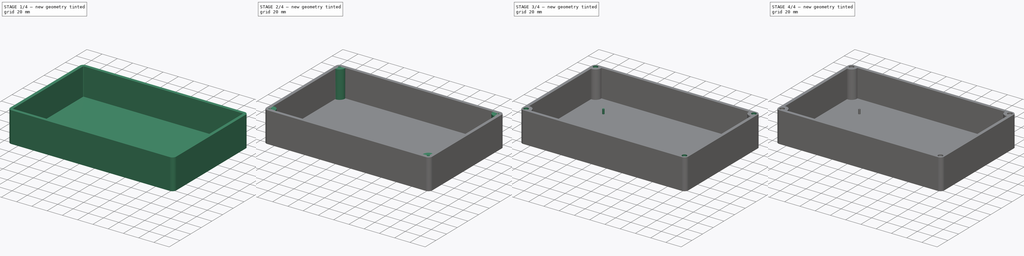
[diagram: build sequence overview — one tinted view per stage of 4, left to right]
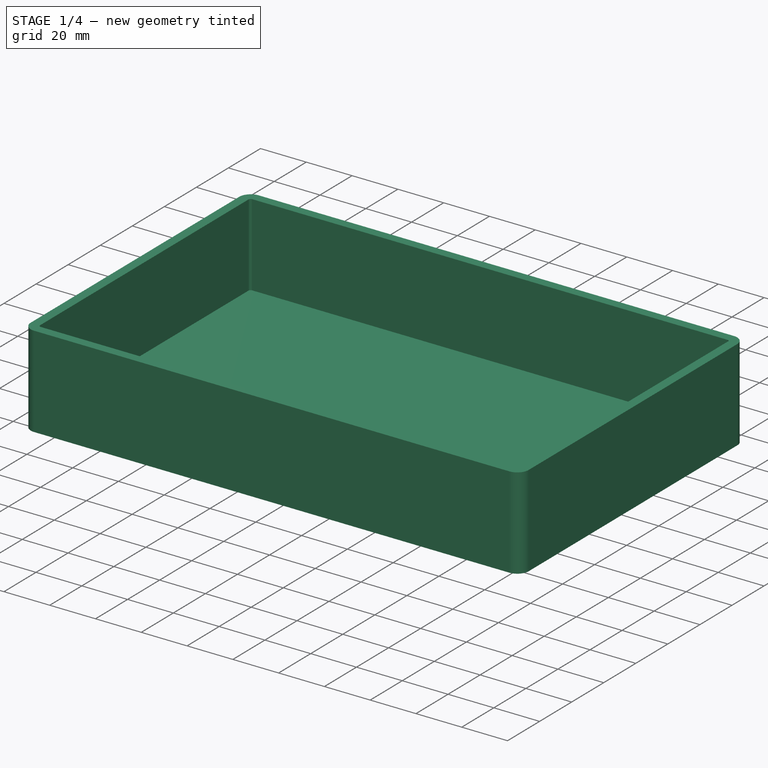
[diagram: stage 1 of 4 — iso view after this stage's code; geometry added in this stage tinted green]
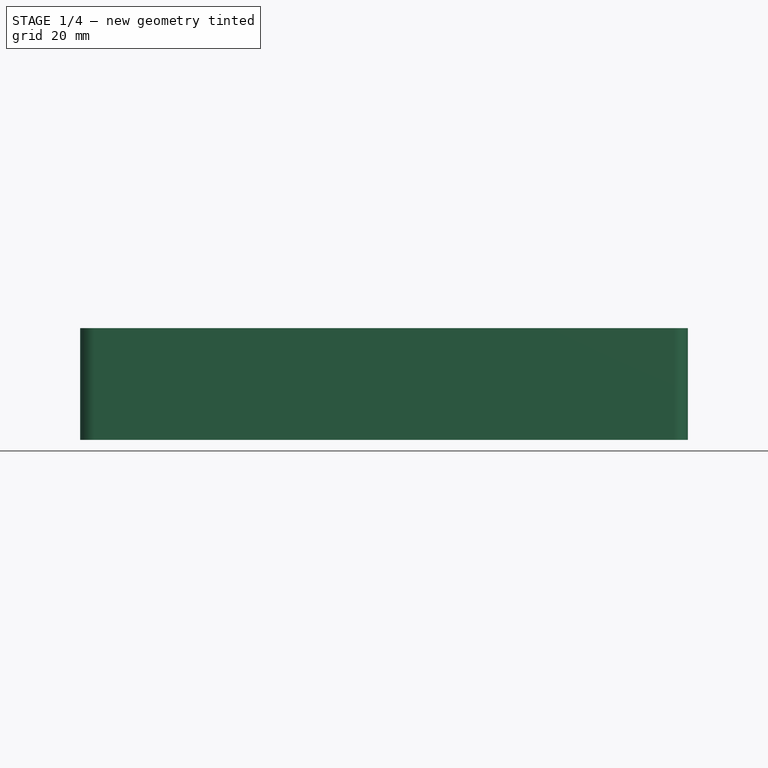
[diagram: stage 1 of 4 — front view after this stage's code; geometry added in this stage tinted green]
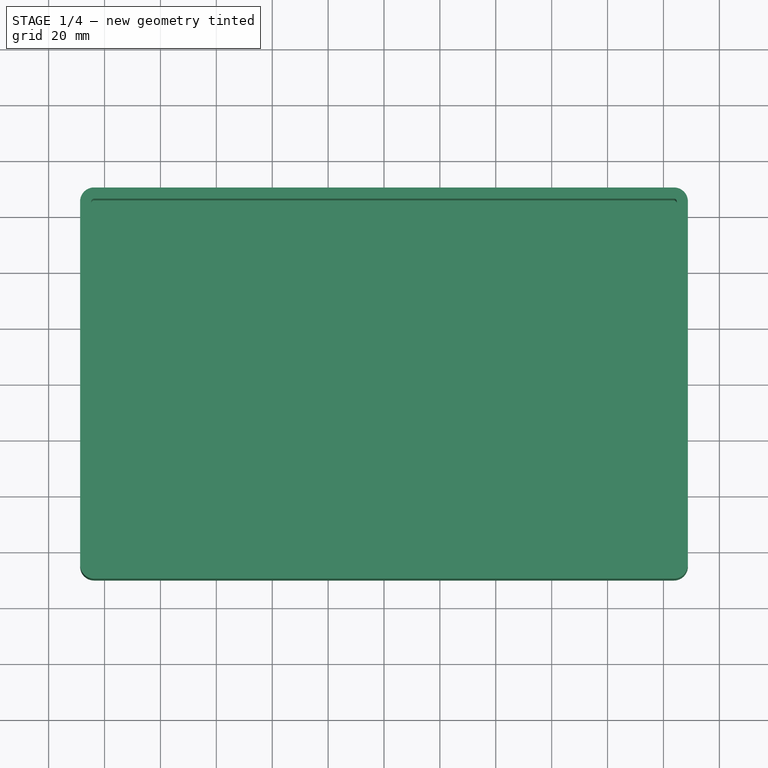
[diagram: stage 1 of 4 — top view after this stage's code; geometry added in this stage tinted green]
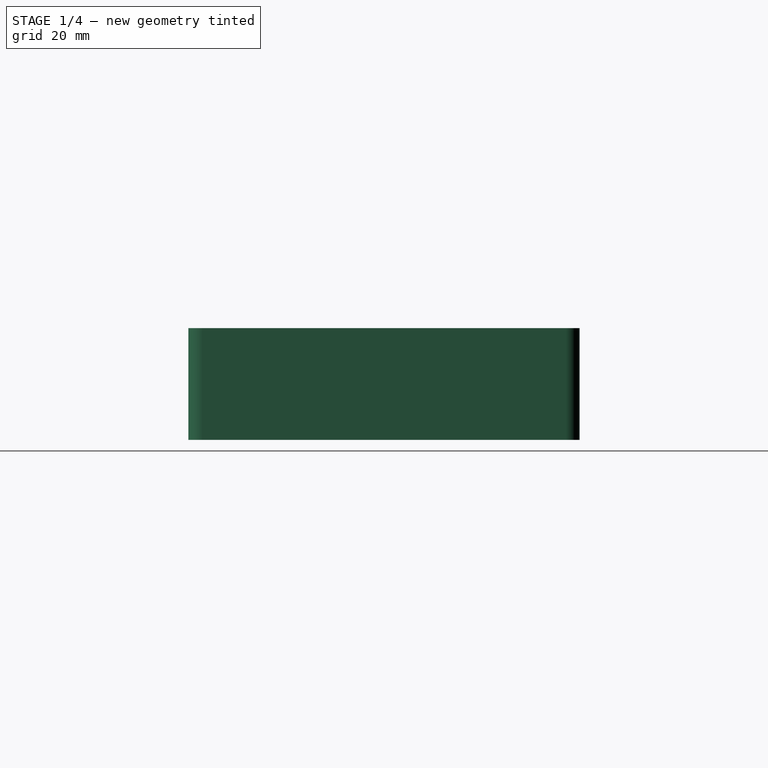
[diagram: stage 1 of 4 — right view after this stage's code; geometry added in this stage tinted green]
FCSTD DOCUMENT  (FreeCAD 1.0R39109 (Git))
Label: 2
License: All rights reserved
LicenseURL: https://en.wikipedia.org/wiki/All_rights_reserved
objects: PartDesign::Mirrored×6, Sketcher::SketchObject×3, PartDesign::Pad×3, PartDesign::MultiTransform×3, PartDesign::Hole×3, PartDesign::Thickness×1, PartDesign::Body×1
note: 46 computed .brp shape members not serialized (recipe doc carries the construction recipe); baked Part::Feature solids carry a one-line shape summary decoded from their .brp

FEATURE [Sketcher::SketchObject] Sketch
  ArcFitTolerance = 1e-06
  AttachmentSupport = -> [XY_Plane]
  FullyConstrained = true
  MakeInternals = false
  MapMode = 5
  sketch-geometry (13):
    g0: LineSegment StartX=-103.75 StartY=-70 StartZ=0 EndX=103.75 EndY=-70 EndZ=0
    g1: LineSegment StartX=108.75 StartY=-65 StartZ=0 EndX=108.75 EndY=65 EndZ=0
    g2: LineSegment StartX=103.75 StartY=70 StartZ=0 EndX=-103.75 EndY=70 EndZ=0
    g3: LineSegment StartX=-108.75 StartY=65 StartZ=0 EndX=-108.75 EndY=-65 EndZ=0
    g4: GeomPoint [constr] X=0 Y=0 Z=0
    g5: ArcOfCircle CenterX=-103.75 CenterY=65 CenterZ=0 NormalX=0 NormalY=0 NormalZ=1 AngleXU=0 Radius=5 StartAngle=1.5708 EndAngle=3.14159
    g6: GeomPoint [constr] X=-108.75 Y=70 Z=0
    g7: ArcOfCircle CenterX=103.75 CenterY=65 CenterZ=0 NormalX=0 NormalY=0 NormalZ=1 AngleXU=0 Radius=5 StartAngle=1e-16 EndAngle=1.5708
    g8: GeomPoint [constr] X=108.75 Y=70 Z=0
    g9: ArcOfCircle CenterX=103.75 CenterY=-65 CenterZ=0 NormalX=0 NormalY=0 NormalZ=1 AngleXU=0 Radius=5 StartAngle=4.71239 EndAngle=6.28319
    g10: GeomPoint [constr] X=108.75 Y=-70 Z=0
    g11: ArcOfCircle CenterX=-103.75 CenterY=-65 CenterZ=0 NormalX=0 NormalY=0 NormalZ=1 AngleXU=0 Radius=5 StartAngle=3.14159 EndAngle=4.71239
    g12: GeomPoint [constr] X=-108.75 Y=-70 Z=0
  constraints (28):
    c: Horizontal(g0)
    c: Horizontal(g2)
    c: Vertical(g1)
    c: Vertical(g3)
    c: Symmetric(g8,g12,g4)
    c: Distance(g10,g12) = 217.5
    c: Distance(g12,g6) = 140
    c: Coincident(g4,g-1)
    c: PointOnObject(g6,g3)
    c: PointOnObject(g6,g2)
    c: Tangent(g3,g5) = -1.5708
    c: Tangent(g2,g5) = -1.5708
    c: PointOnObject(g8,g2)
    c: PointOnObject(g8,g1)
    c: Tangent(g2,g7) = -1.5708
    c: Tangent(g1,g7) = -1.5708
    c: PointOnObject(g10,g1)
    c: PointOnObject(g10,g0)
    c: Tangent(g1,g9) = -1.5708
    c: Tangent(g0,g9) = -1.5708
    c: PointOnObject(g12,g0)
    c: PointOnObject(g12,g3)
    c: Tangent(g0,g11) = -1.5708
    c: Tangent(g3,g11) = -1.5708
    c: Radius(g11) = 5
    c: Radius(g5) = 5
    c: Radius(g7) = 5
    c: Radius(g9) = 5
FEATURE [PartDesign::Pad] Pad
  Direction = (0,0,1)
  Length = 40
  Length2 = 10
  Profile = -> Sketch
  ReferenceAxis = -> Sketch [N_Axis]
  Refine = true
  Suppressed = false
  Type = 0
FEATURE [PartDesign::Thickness] Thickness
  Base = -> Pad [Face10]
  BaseFeature = -> Pad
  Intersection = false
  Join = 0
  Mode = 0
  Refine = true
  Reversed = true
  SupportTransform = false
  Suppressed = false
  Value = 4
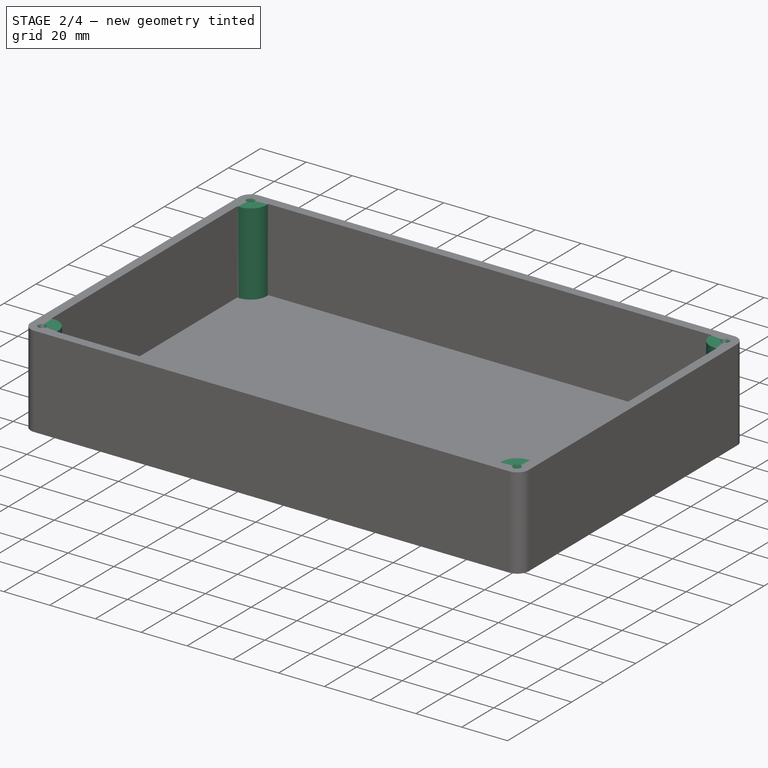
[diagram: stage 2 of 4 — iso view after this stage's code; geometry added in this stage tinted green]
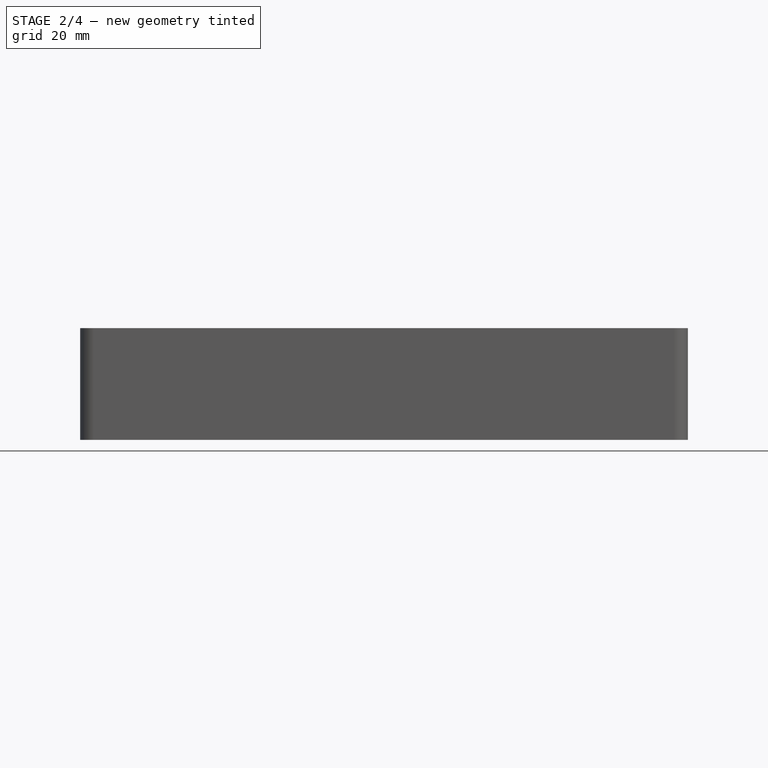
[diagram: stage 2 of 4 — front view after this stage's code; geometry added in this stage tinted green]
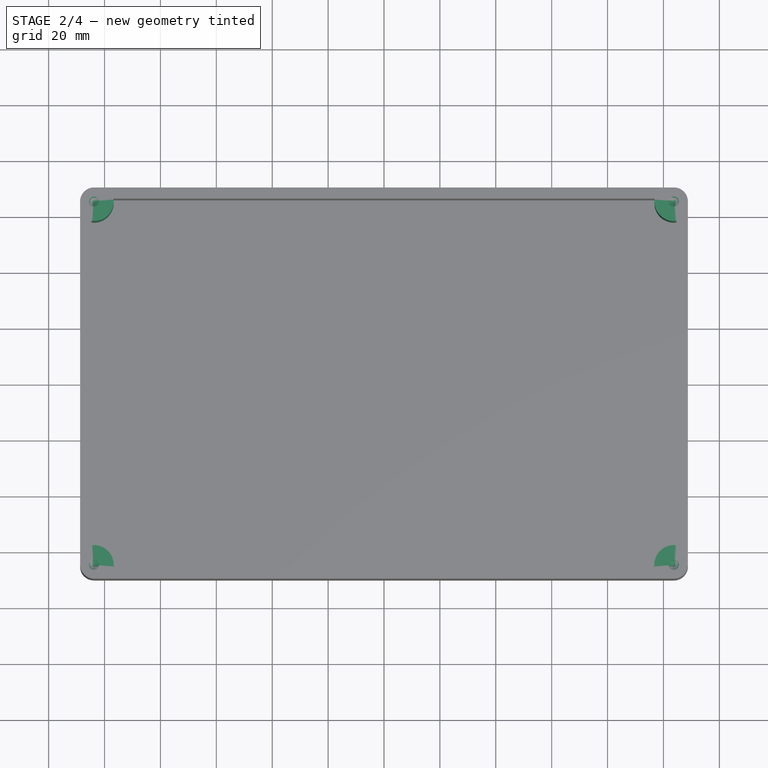
[diagram: stage 2 of 4 — top view after this stage's code; geometry added in this stage tinted green]
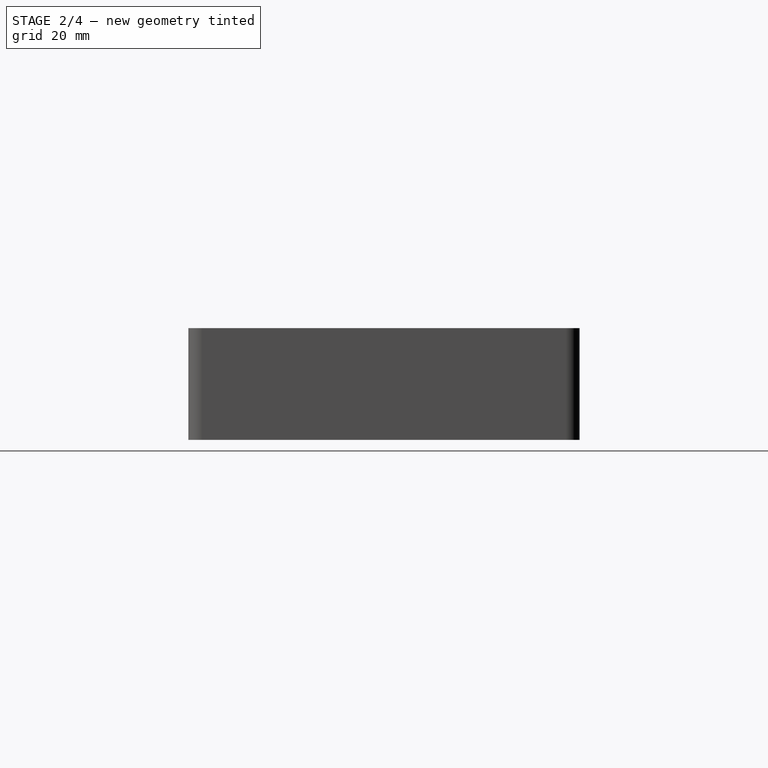
[diagram: stage 2 of 4 — right view after this stage's code; geometry added in this stage tinted green]
FEATURE [Sketcher::SketchObject] Sketch001
  ArcFitTolerance = 1e-06
  AttachmentSupport = -> [Thickness]
  ExternalGeometry = -> [Thickness]
  FullyConstrained = true
  MakeInternals = false
  MapMode = 5
  Placement = pos=(0,0,40) rot=(0,0,1;0rad)
  sketch-geometry (4):
    g0: ArcOfCircle CenterX=103.75 CenterY=-65 CenterZ=0 NormalX=0 NormalY=0 NormalZ=1 AngleXU=0 Radius=7 StartAngle=1.42745 EndAngle=3.28494
    g1: ArcOfCircle CenterX=103.75 CenterY=-65 CenterZ=0 NormalX=0 NormalY=0 NormalZ=1 AngleXU=0 Radius=1 StartAngle=4.71239 EndAngle=6.28319
    g2: LineSegment StartX=103.75 StartY=-66 StartZ=0 EndX=96.8218 EndY=-66 EndZ=0
    g3: LineSegment StartX=104.75 StartY=-65 StartZ=0 EndX=104.75 EndY=-58.0718 EndZ=0
  constraints (11):
    c: Diameter(g0) = 14
    c: Coincident(g0,g-3)
    c: Coincident(g1,g0)
    c: Coincident(g2,g-3)
    c: Horizontal(g2)
    c: Coincident(g3,g-3)
    c: Vertical(g3)
    c: Coincident(g3,g0)
    c: Coincident(g2,g0)
    c: Coincident(g1,g3)
    c: Block(g1)
FEATURE [PartDesign::Pad] Pad001
  BaseFeature = -> Thickness
  Direction = (0,0,1)
  Length = 10
  Length2 = 10
  Profile = -> Sketch001
  ReferenceAxis = -> Sketch001 [N_Axis]
  Refine = true
  Reversed = true
  Suppressed = false
  Type = 2
FEATURE [PartDesign::Mirrored] Mirrored
  MirrorPlane = -> YZ_Plane
  Refine = true
  Suppressed = false
  TransformMode = 0
FEATURE [PartDesign::Mirrored] Mirrored001
  MirrorPlane = -> XZ_Plane
  Refine = true
  Suppressed = false
  TransformMode = 0
FEATURE [PartDesign::MultiTransform] MultiTransform
  BaseFeature = -> Pad001
  Originals = -> [Pad001]
  Refine = true
  Suppressed = false
  TransformMode = 0
  Transformations = -> [Mirrored,Mirrored001]
FEATURE [PartDesign::Hole] Hole
  BaseFeature = -> MultiTransform
  CustomThreadClearance = 0
  Depth = 8
  DepthType = 0
  Diameter = 3.52
  DrillForDepth = false
  DrillPoint = 1
  DrillPointAngle = 118
  HoleCutCountersinkAngle = 90
  HoleCutCustomValues = false
  HoleCutDepth = 0
  HoleCutDiameter = 6.1
  HoleCutType = 0
  ModelThread = true
  Profile = -> MultiTransform [Face10]
  Refine = true
  Suppressed = false
  Tapered = false
  TaperedAngle = 90
  ThreadClass = 0
  ThreadDepth = 8
  ThreadDepthType = 0
  ThreadDirection = 0
  ThreadFit = 0
  ThreadSize = 11
  ThreadType = 2
  Threaded = true
  UseCustomThreadClearance = false
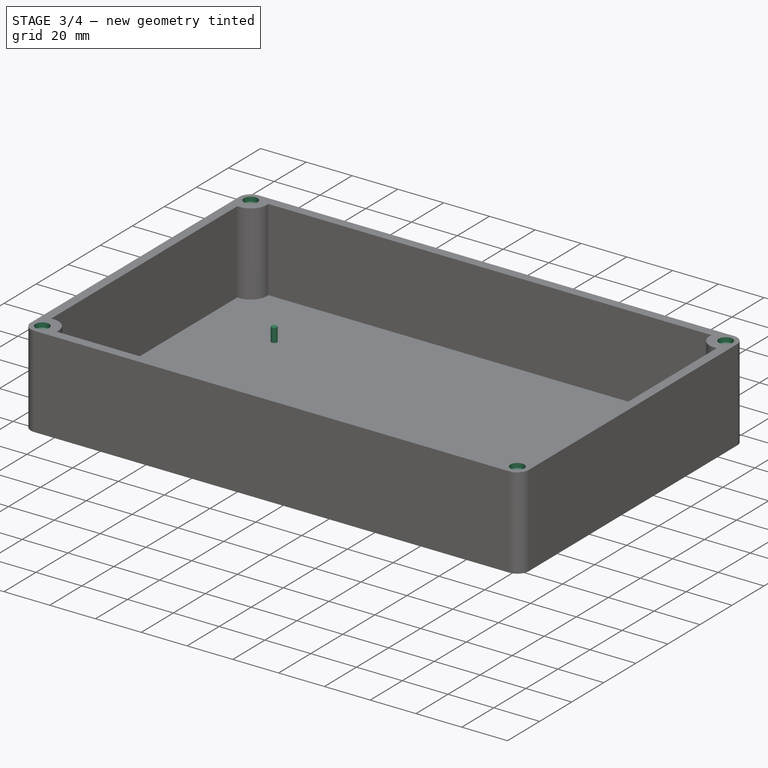
[diagram: stage 3 of 4 — iso view after this stage's code; geometry added in this stage tinted green]
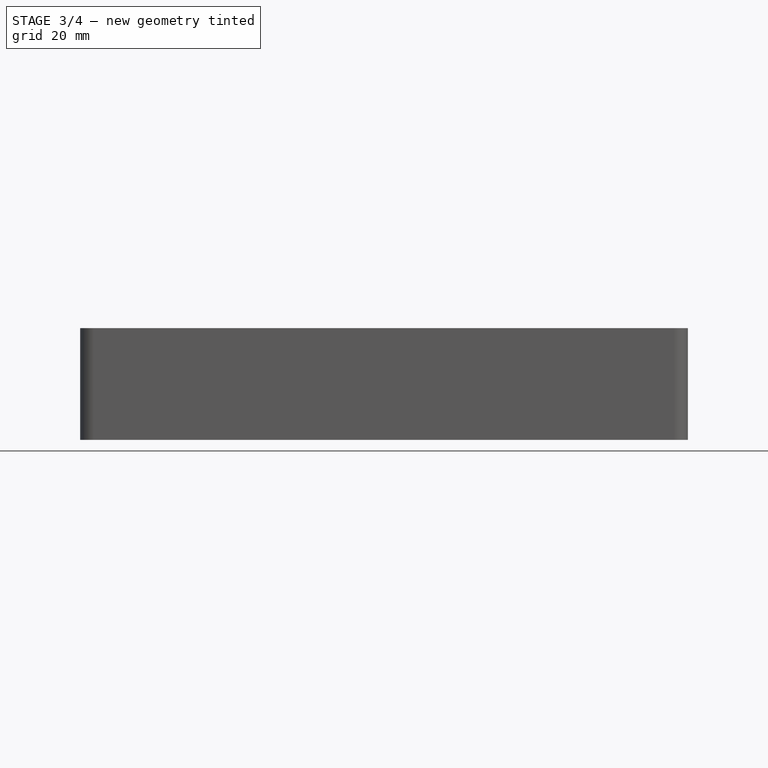
[diagram: stage 3 of 4 — front view after this stage's code; geometry added in this stage tinted green]
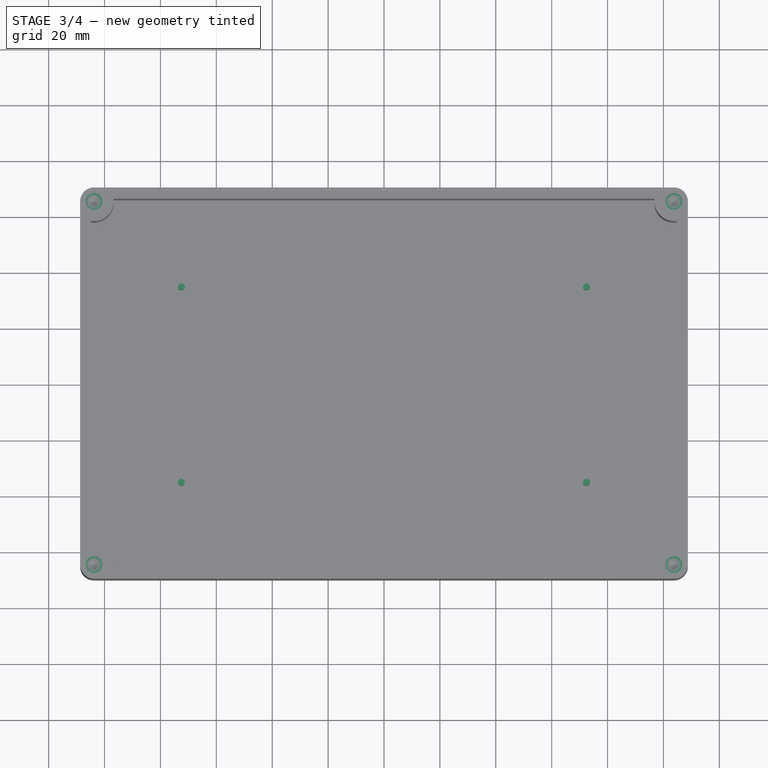
[diagram: stage 3 of 4 — top view after this stage's code; geometry added in this stage tinted green]
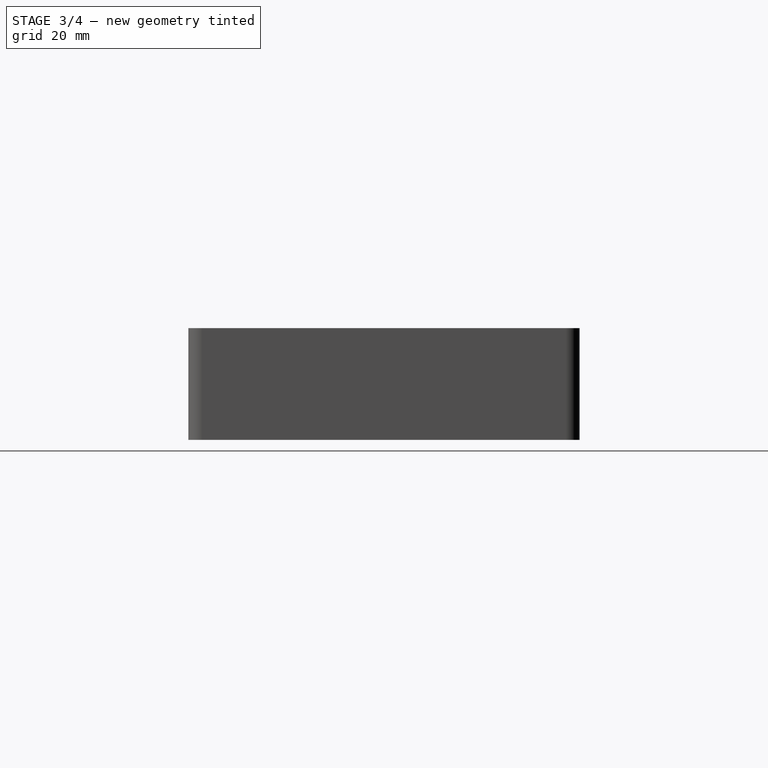
[diagram: stage 3 of 4 — right view after this stage's code; geometry added in this stage tinted green]
FEATURE [PartDesign::Hole] Hole001
  BaseFeature = -> Hole
  CustomThreadClearance = 0
  Depth = 2
  DepthType = 0
  Diameter = 6
  DrillForDepth = false
  DrillPoint = 0
  DrillPointAngle = 118
  HoleCutCountersinkAngle = 90
  HoleCutCustomValues = false
  HoleCutDepth = 0
  HoleCutDiameter = 6.1
  HoleCutType = 0
  ModelThread = false
  Profile = -> Hole [Face5]
  Refine = true
  Suppressed = false
  Tapered = false
  TaperedAngle = 90
  ThreadClass = 0
  ThreadDepth = 2
  ThreadDepthType = 0
  ThreadDirection = 0
  ThreadFit = 0
  ThreadSize = 0
  ThreadType = 0
  Threaded = false
  UseCustomThreadClearance = false
FEATURE [Sketcher::SketchObject] Sketch002
  ArcFitTolerance = 1e-06
  AttachmentSupport = -> [Hole001]
  FullyConstrained = true
  MakeInternals = false
  MapMode = 5
  Placement = pos=(0,0,4) rot=(0,0,1;0rad)
  sketch-geometry (6):
    g0: LineSegment [constr] StartX=-72.5 StartY=-35 StartZ=0 EndX=72.5 EndY=-35 EndZ=0
    g1: LineSegment [constr] StartX=72.5 StartY=-35 StartZ=0 EndX=72.5 EndY=35 EndZ=0
    g2: LineSegment [constr] StartX=72.5 StartY=35 StartZ=0 EndX=-72.5 EndY=35 EndZ=0
    g3: LineSegment [constr] StartX=-72.5 StartY=35 StartZ=0 EndX=-72.5 EndY=-35 EndZ=0
    g4: GeomPoint [constr] X=0 Y=0 Z=0
    g5: Circle CenterX=72.5 CenterY=-35 CenterZ=0 NormalX=0 NormalY=0 NormalZ=1 AngleXU=0 Radius=1.25
  constraints (14):
    c: Coincident(g0,g1)
    c: Coincident(g1,g2)
    c: Coincident(g2,g3)
    c: Coincident(g3,g0)
    c: Horizontal(g0)
    c: Horizontal(g2)
    c: Vertical(g1)
    c: Vertical(g3)
    c: Symmetric(g2,g0,g4)
    c: Distance(g1,g3) = 145
    c: Distance(g0,g2) = 70
    c: Coincident(g4,g-1)
    c: Coincident(g5,g0)
    c: Diameter(g5) = 2.5
FEATURE [PartDesign::Pad] Pad002
  BaseFeature = -> Hole001
  Direction = (0,0,1)
  Length = 6
  Length2 = 10
  Profile = -> Sketch002
  ReferenceAxis = -> Sketch002 [N_Axis]
  Refine = true
  Suppressed = false
  Type = 0
FEATURE [PartDesign::Mirrored] Mirrored002
  MirrorPlane = -> Sketch002 [V_Axis]
  Refine = true
  Suppressed = false
  TransformMode = 0
FEATURE [PartDesign::Mirrored] Mirrored003
  MirrorPlane = -> XZ_Plane
  Refine = true
  Suppressed = false
  TransformMode = 0
FEATURE [PartDesign::MultiTransform] MultiTransform001
  BaseFeature = -> Pad002
  Originals = -> [Pad002]
  Refine = true
  Suppressed = false
  TransformMode = 0
  Transformations = -> [Mirrored002,Mirrored003]
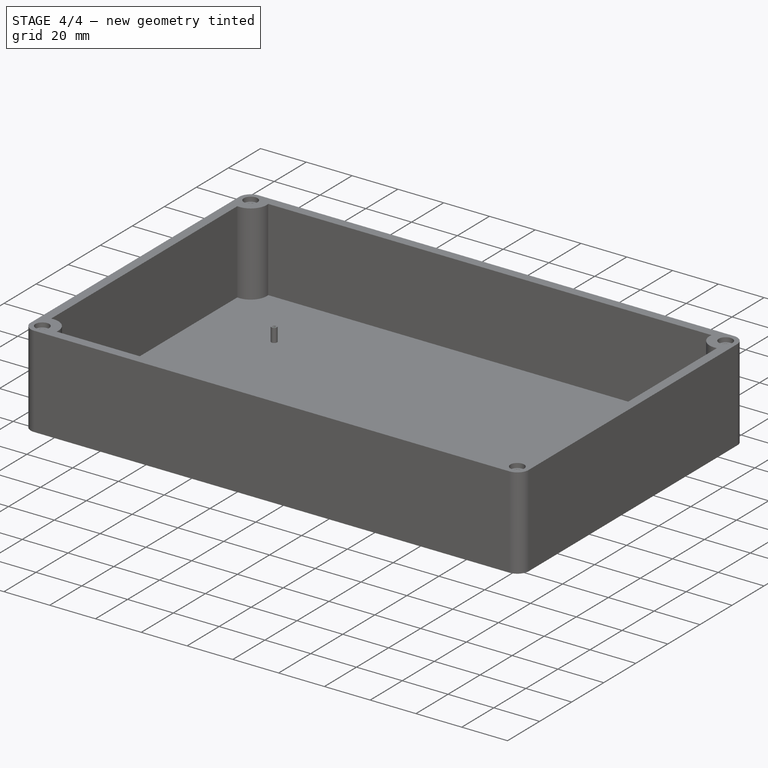
[diagram: stage 4 of 4 — iso view after this stage's code; geometry added in this stage tinted green]
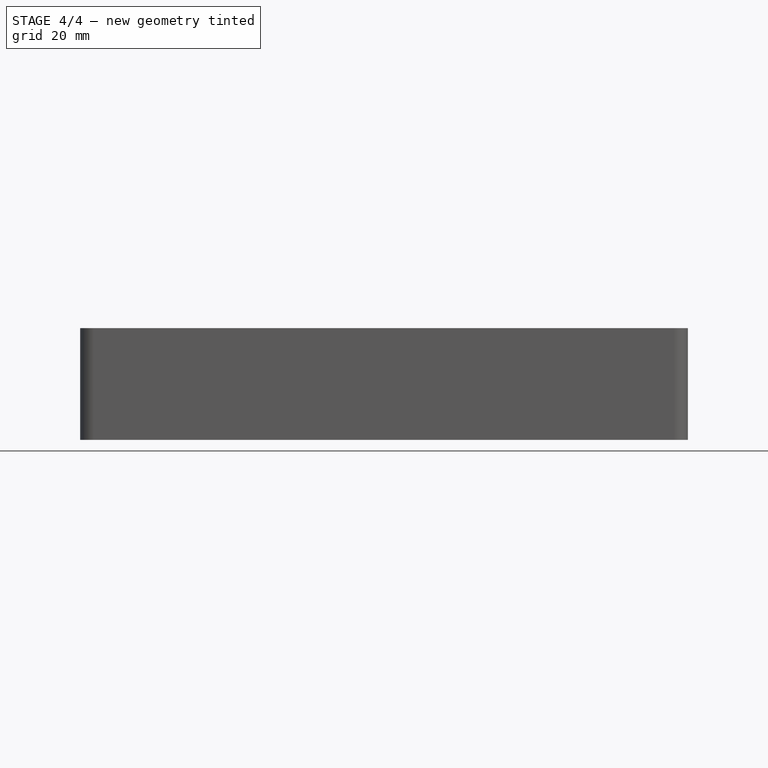
[diagram: stage 4 of 4 — front view after this stage's code; geometry added in this stage tinted green]
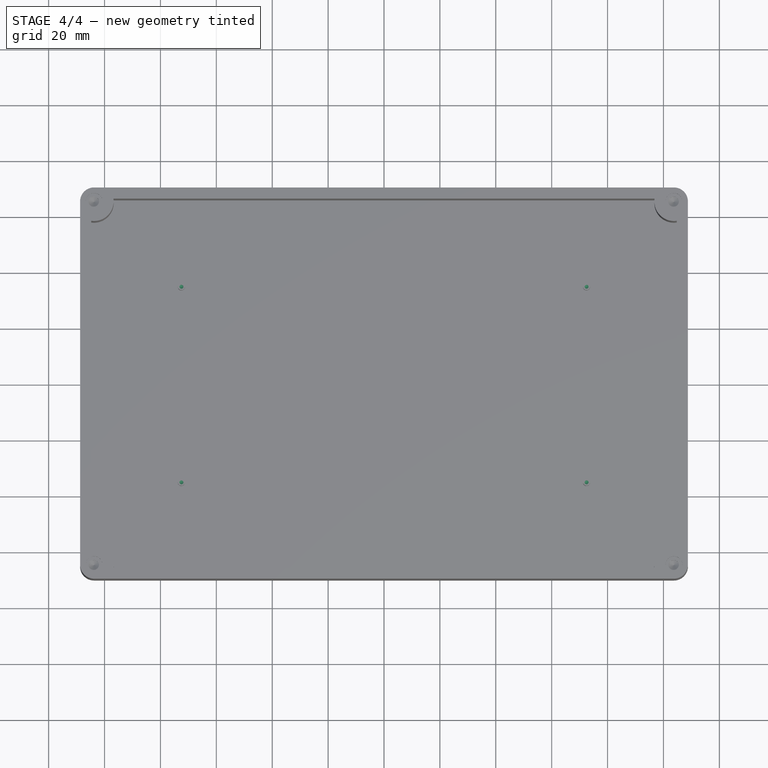
[diagram: stage 4 of 4 — top view after this stage's code; geometry added in this stage tinted green]
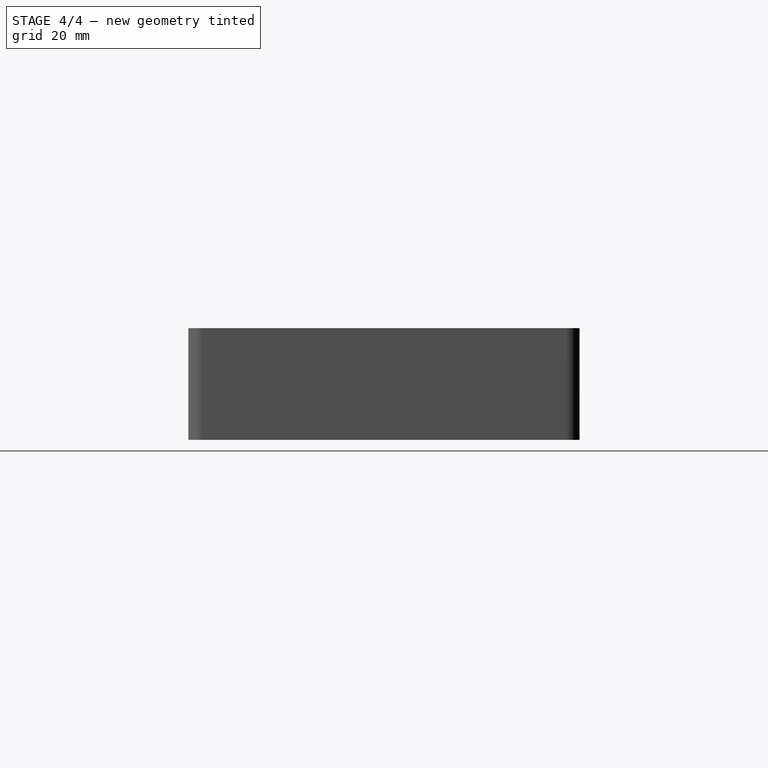
[diagram: stage 4 of 4 — right view after this stage's code; geometry added in this stage tinted green]
FEATURE [PartDesign::Hole] Hole002
  BaseFeature = -> MultiTransform001
  CustomThreadClearance = 0
  Depth = 4
  DepthType = 0
  Diameter = 1.417
  DrillForDepth = false
  DrillPoint = 1
  DrillPointAngle = 118
  HoleCutCountersinkAngle = 90
  HoleCutCustomValues = false
  HoleCutDepth = 0
  HoleCutDiameter = 6.1
  HoleCutType = 0
  ModelThread = true
  Profile = -> MultiTransform001 [Face61]
  Refine = true
  Suppressed = false
  Tapered = false
  TaperedAngle = 90
  ThreadClass = 0
  ThreadDepth = 4
  ThreadDepthType = 0
  ThreadDirection = 0
  ThreadFit = 0
  ThreadSize = 4
  ThreadType = 2
  Threaded = true
  UseCustomThreadClearance = false
FEATURE [PartDesign::Mirrored] Mirrored004
  MirrorPlane = -> YZ_Plane
  Refine = true
  Suppressed = false
  TransformMode = 0
FEATURE [PartDesign::Mirrored] Mirrored005
  MirrorPlane = -> XZ_Plane
  Refine = true
  Suppressed = false
  TransformMode = 0
FEATURE [PartDesign::MultiTransform] MultiTransform002
  BaseFeature = -> Hole002
  Originals = -> [Hole002]
  Refine = true
  Suppressed = false
  TransformMode = 0
  Transformations = -> [Mirrored004,Mirrored005]
FEATURE [PartDesign::Body] Body  label="Тело"
  AllowCompound = false
  Group = -> [Sketch,Pad,Thickness,Sketch001,Pad001,MultiTransform,Mirrored,Mirrored001,Hole,Hole001,Sketch002,Pad002,MultiTransform001,Mirrored002,Mirrored003,Hole002,MultiTransform002,Mirrored004,Mirrored005]
  Origin = -> Origin
  Tip = -> MultiTransform002
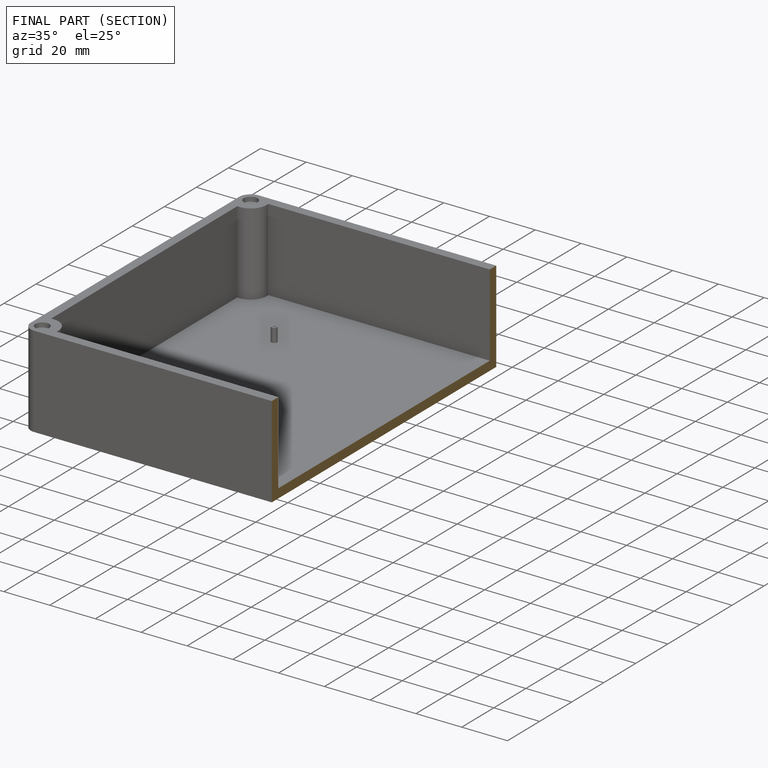
[diagram: finished part — half-section view (interior)]
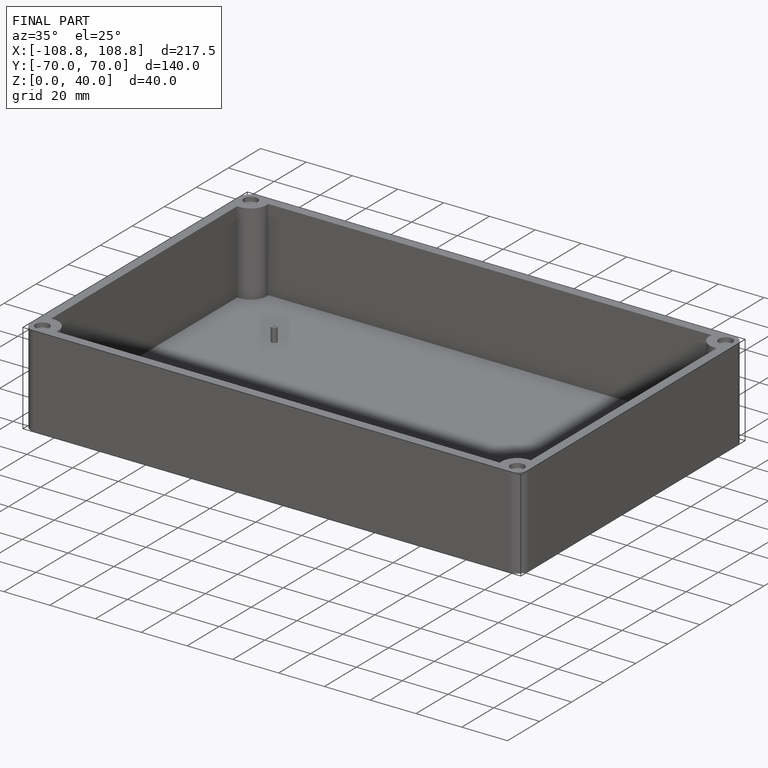
[diagram: finished part — iso view with bounding-box wireframe]
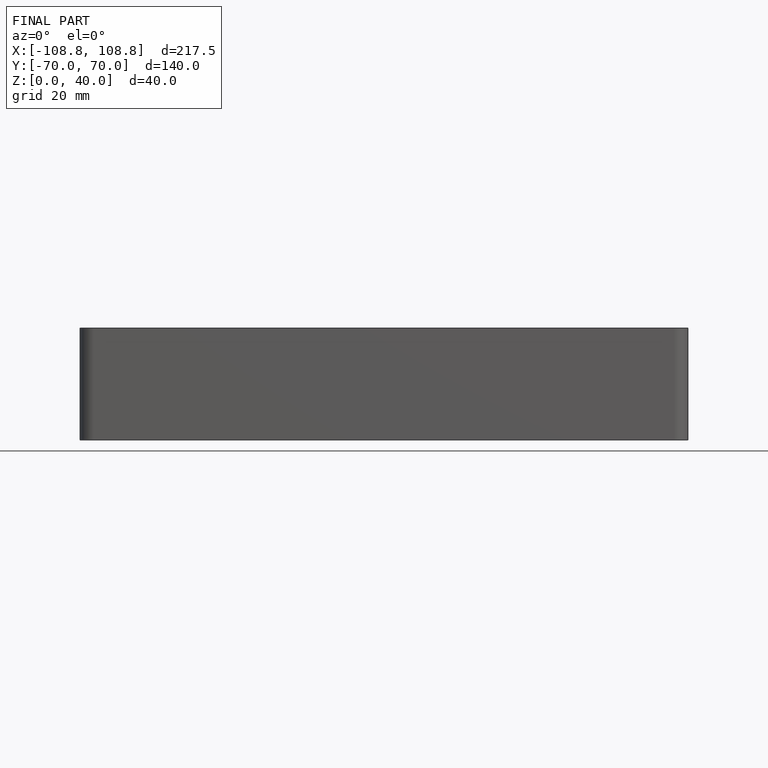
[diagram: finished part — front view with bounding-box wireframe]
